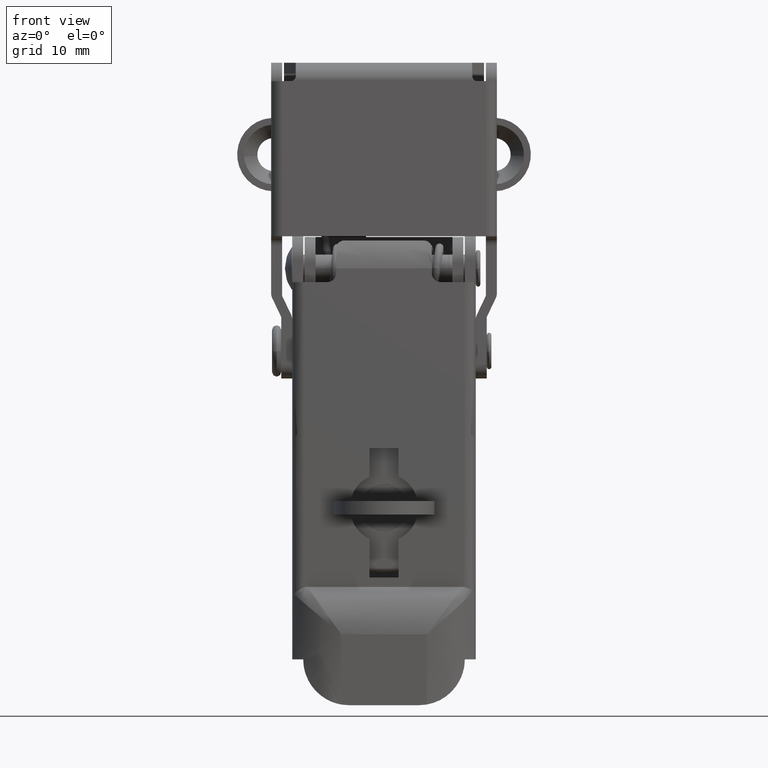
[diagram: clean part render]
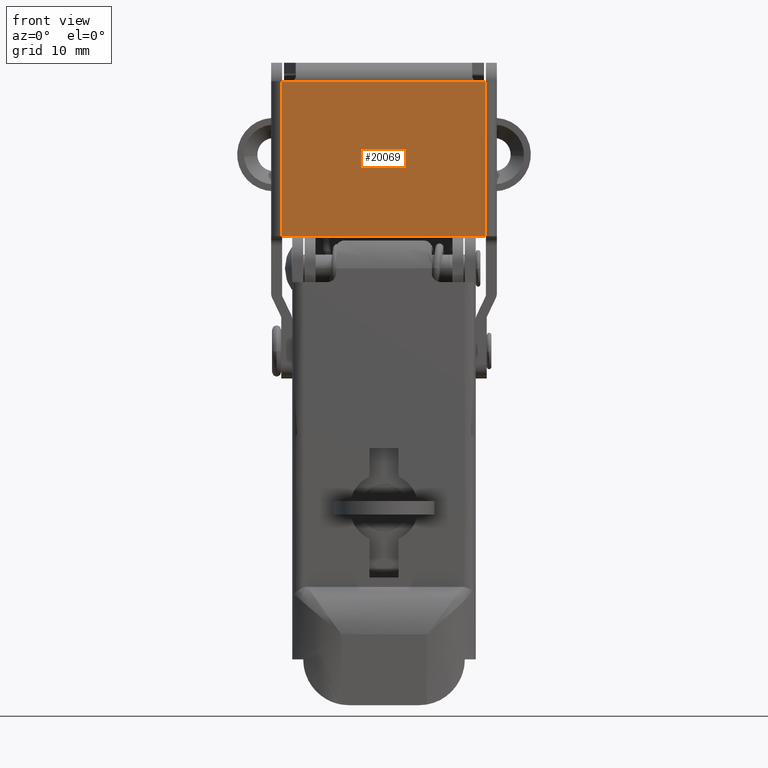
[diagram: same view with one face highlighted and labeled with its STEP entity id]
A machine part, front view. The second image highlights one B-rep face of the part: STEP entity #20069.
In plain terms, the highlighted face is a freeform B-spline surface patch.
Its self-contained STEP definition (entity closure, byte-faithful):
#18782=CARTESIAN_POINT('',(10.120000000087201,-10.300000000035940,29.000000000045699));
#18783=VERTEX_POINT('',#18782);
#18836=CARTESIAN_POINT('',(11.100000000065320,-10.300000000035940,29.000000000045699));
#18837=VERTEX_POINT('',#18836);
#18838=CARTESIAN_POINT('',(11.100000000065320,-10.300000000035940,29.000000000045699));
#18839=CARTESIAN_POINT('',(10.120000000087201,-10.300000000035940,29.000000000045699));
#18840=QUASI_UNIFORM_CURVE('',1,(#18838,#18839),.UNSPECIFIED.,.F.,.U.);
#18841=EDGE_CURVE('',#18837,#18783,#18840,.T.);
#18888=CARTESIAN_POINT('',(-11.099999999919159,-10.300000000035940,29.000000000092300));
#18889=VERTEX_POINT('',#18888);
#18903=CARTESIAN_POINT('',(-10.119999999938759,-10.300000000035940,29.000000000087901));
#18904=VERTEX_POINT('',#18903);
#18905=CARTESIAN_POINT('',(-10.119999999938759,-10.300000000035940,29.000000000087901));
#18906=CARTESIAN_POINT('',(-11.099999999919159,-10.300000000035940,29.000000000092300));
#18907=QUASI_UNIFORM_CURVE('',1,(#18905,#18906),.UNSPECIFIED.,.F.,.U.);
#18908=EDGE_CURVE('',#18904,#18889,#18907,.T.);
#19184=CARTESIAN_POINT('',(11.100000000016360,-10.300000000035940,12.099999999970461));
#19185=VERTEX_POINT('',#19184);
#19205=CARTESIAN_POINT('',(11.100000000016360,-10.300000000035940,12.099999999970461));
#19206=CARTESIAN_POINT('',(11.100000000065320,-10.300000000035940,29.000000000045699));
#19207=QUASI_UNIFORM_CURVE('',1,(#19205,#19206),.UNSPECIFIED.,.F.,.U.);
#19208=EDGE_CURVE('',#19185,#18837,#19207,.T.);
#19235=CARTESIAN_POINT('',(-11.099999999940900,-10.300000000035940,12.099999999999319));
#19236=VERTEX_POINT('',#19235);
#19250=CARTESIAN_POINT('',(-11.099999999919159,-10.300000000035940,29.000000000092300));
#19251=CARTESIAN_POINT('',(-11.099999999940900,-10.300000000035940,12.099999999999319));
#19252=QUASI_UNIFORM_CURVE('',1,(#19250,#19251),.UNSPECIFIED.,.F.,.U.);
#19253=EDGE_CURVE('',#18889,#19236,#19252,.T.);
#19276=CARTESIAN_POINT('',(10.120000000087201,-10.300000000035940,29.000000000045699));
#19277=CARTESIAN_POINT('',(-10.119999999938759,-10.300000000035940,29.000000000087901));
#19278=QUASI_UNIFORM_CURVE('',1,(#19276,#19277),.UNSPECIFIED.,.F.,.U.);
#19279=EDGE_CURVE('',#18783,#18904,#19278,.T.);
#20052=CARTESIAN_POINT('',(-12.208889956913300,-10.300000000035940,29.844154967342909));
#20053=CARTESIAN_POINT('',(12.208890552488119,-10.300000000035940,29.844154967342909));
#20054=CARTESIAN_POINT('',(-12.208889956913300,-10.300000000035940,11.255844579426530));
#20055=CARTESIAN_POINT('',(12.208890552488119,-10.300000000035940,11.255844579426530));
#20056=B_SPLINE_SURFACE_WITH_KNOTS('',1,1,((#20052,#20054),(#20053,#20055)),.UNSPECIFIED.,.F.,.F.,.U.,(2,2),(2,2),(0.0,24.417780509401432),(0.0,18.588310387916380),.UNSPECIFIED.);
#20057=ORIENTED_EDGE('',*,*,#18908,.T.);
#20058=ORIENTED_EDGE('',*,*,#19253,.T.);
#20059=CARTESIAN_POINT('',(-11.099999999940900,-10.300000000035940,12.099999999999319));
#20060=CARTESIAN_POINT('',(11.100000000016360,-10.300000000035940,12.099999999970461));
#20061=QUASI_UNIFORM_CURVE('',1,(#20059,#20060),.UNSPECIFIED.,.F.,.U.);
#20062=EDGE_CURVE('',#19236,#19185,#20061,.T.);
#20063=ORIENTED_EDGE('',*,*,#20062,.T.);
#20064=ORIENTED_EDGE('',*,*,#19208,.T.);
#20065=ORIENTED_EDGE('',*,*,#18841,.T.);
#20066=ORIENTED_EDGE('',*,*,#19279,.T.);
#20067=EDGE_LOOP('',(#20057,#20058,#20063,#20064,#20065,#20066));
#20068=FACE_OUTER_BOUND('',#20067,.T.);
#20069=ADVANCED_FACE('',(#20068),#20056,.F.);